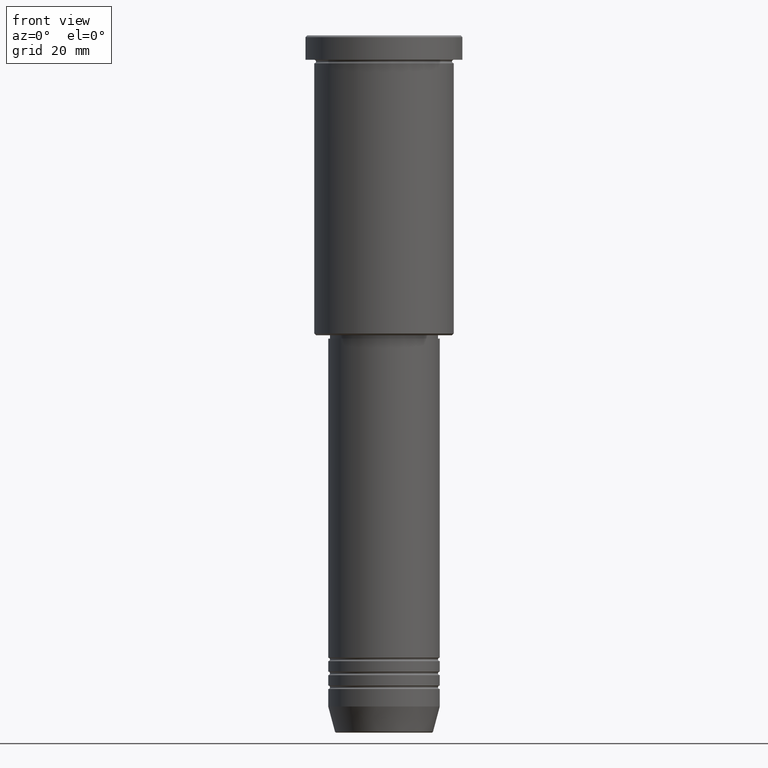
[diagram: clean part render]
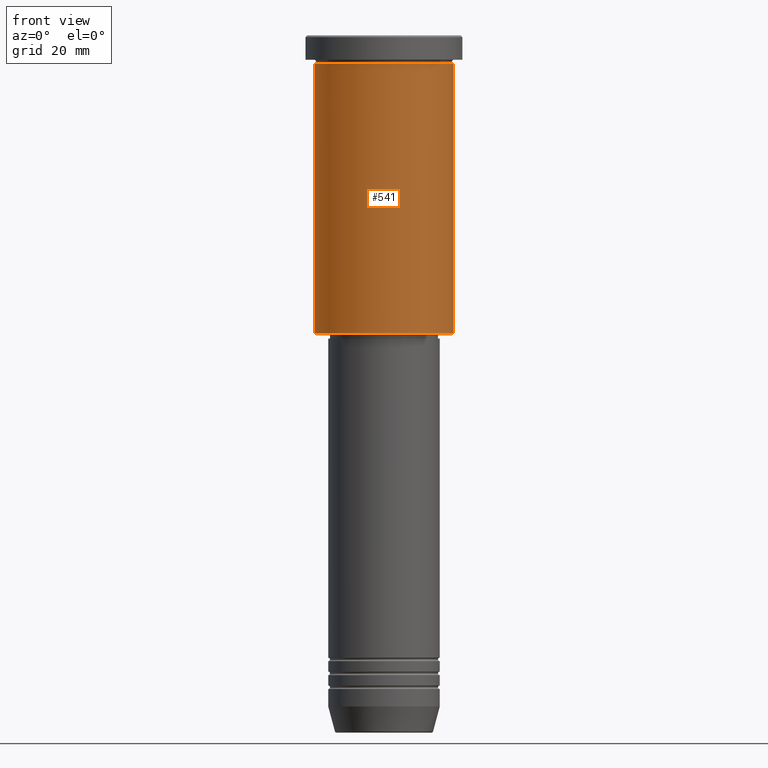
[diagram: same view with one face highlighted and labeled with its STEP entity id]
A machine part, front view. The second image highlights one B-rep face of the part: STEP entity #541.
In plain terms, the highlighted cylindrical surface (partial cylindrical patch) has radius 20 mm, axis along (-0, -0, 1).
Its self-contained STEP definition (entity closure, byte-faithful):
#7 = CARTESIAN_POINT ( 'NONE',  ( -20.00000000000000355, 2.449293598294706907E-15, 0.000000000000000000 ) ) ;
#35 = CARTESIAN_POINT ( 'NONE',  ( 0.000000000000000000, 0.000000000000000000, -85.49999999999997158 ) ) ;
#42 = DIRECTION ( 'NONE',  ( -0.000000000000000000, -0.000000000000000000, 1.000000000000000000 ) ) ;
#114 = ORIENTED_EDGE ( 'NONE', *, *, #179, .T. ) ;
#120 = CARTESIAN_POINT ( 'NONE',  ( 0.000000000000000000, 0.000000000000000000, -7.999999999999994671 ) ) ;
#162 = CYLINDRICAL_SURFACE ( 'NONE', #455, 20.00000000000000355 ) ;
#165 = VECTOR ( 'NONE', #1011, 1000.000000000000000 ) ;
#168 = VECTOR ( 'NONE', #378, 1000.000000000000000 ) ;
#179 = EDGE_CURVE ( 'NONE', #398, #1112, #365, .T. ) ;
#235 = CARTESIAN_POINT ( 'NONE',  ( 20.00000000000000355, 0.000000000000000000, -85.49999999999997158 ) ) ;
#258 = DIRECTION ( 'NONE',  ( -0.000000000000000000, -0.000000000000000000, 1.000000000000000000 ) ) ;
#277 = VERTEX_POINT ( 'NONE', #728 ) ;
#313 = EDGE_CURVE ( 'NONE', #1112, #277, #815, .T. ) ;
#365 = CIRCLE ( 'NONE', #708, 20.00000000000000355 ) ;
#378 = DIRECTION ( 'NONE',  ( -0.000000000000000000, -0.000000000000000000, 1.000000000000000000 ) ) ;
#389 = DIRECTION ( 'NONE',  ( -1.000000000000000000, 0.000000000000000000, 0.000000000000000000 ) ) ;
#398 = VERTEX_POINT ( 'NONE', #1055 ) ;
#418 = DIRECTION ( 'NONE',  ( 1.000000000000000000, 0.000000000000000000, 0.000000000000000000 ) ) ;
#437 = DIRECTION ( 'NONE',  ( 1.000000000000000000, 0.000000000000000000, 0.000000000000000000 ) ) ;
#449 = FACE_OUTER_BOUND ( 'NONE', #467, .T. ) ;
#452 = EDGE_CURVE ( 'NONE', #835, #277, #821, .T. ) ;
#455 = AXIS2_PLACEMENT_3D ( 'NONE', #1159, #258, #437 ) ;
#467 = EDGE_LOOP ( 'NONE', ( #505, #114, #750, #897 ) ) ;
#505 = ORIENTED_EDGE ( 'NONE', *, *, #972, .F. ) ;
#541 = ADVANCED_FACE ( 'NONE', ( #449 ), #162, .T. ) ;
#658 = CARTESIAN_POINT ( 'NONE',  ( 20.00000000000000355, 0.000000000000000000, 0.000000000000000000 ) ) ;
#708 = AXIS2_PLACEMENT_3D ( 'NONE', #35, #42, #389 ) ;
#719 = CARTESIAN_POINT ( 'NONE',  ( -20.00000000000000000, 2.449293598294706513E-15, -7.999999999999994671 ) ) ;
#728 = CARTESIAN_POINT ( 'NONE',  ( 20.00000000000000000, 0.000000000000000000, -7.999999999999994671 ) ) ;
#750 = ORIENTED_EDGE ( 'NONE', *, *, #313, .T. ) ;
#780 = DIRECTION ( 'NONE',  ( -0.000000000000000000, -0.000000000000000000, 1.000000000000000000 ) ) ;
#815 = LINE ( 'NONE', #658, #165 ) ;
#821 = CIRCLE ( 'NONE', #918, 20.00000000000000000 ) ;
#833 = LINE ( 'NONE', #7, #168 ) ;
#835 = VERTEX_POINT ( 'NONE', #719 ) ;
#897 = ORIENTED_EDGE ( 'NONE', *, *, #452, .F. ) ;
#918 = AXIS2_PLACEMENT_3D ( 'NONE', #120, #780, #418 ) ;
#972 = EDGE_CURVE ( 'NONE', #398, #835, #833, .T. ) ;
#1011 = DIRECTION ( 'NONE',  ( -0.000000000000000000, -0.000000000000000000, 1.000000000000000000 ) ) ;
#1055 = CARTESIAN_POINT ( 'NONE',  ( -20.00000000000000355, 2.449293598294706907E-15, -85.49999999999997158 ) ) ;
#1112 = VERTEX_POINT ( 'NONE', #235 ) ;
#1159 = CARTESIAN_POINT ( 'NONE',  ( 0.000000000000000000, 0.000000000000000000, 0.000000000000000000 ) ) ;